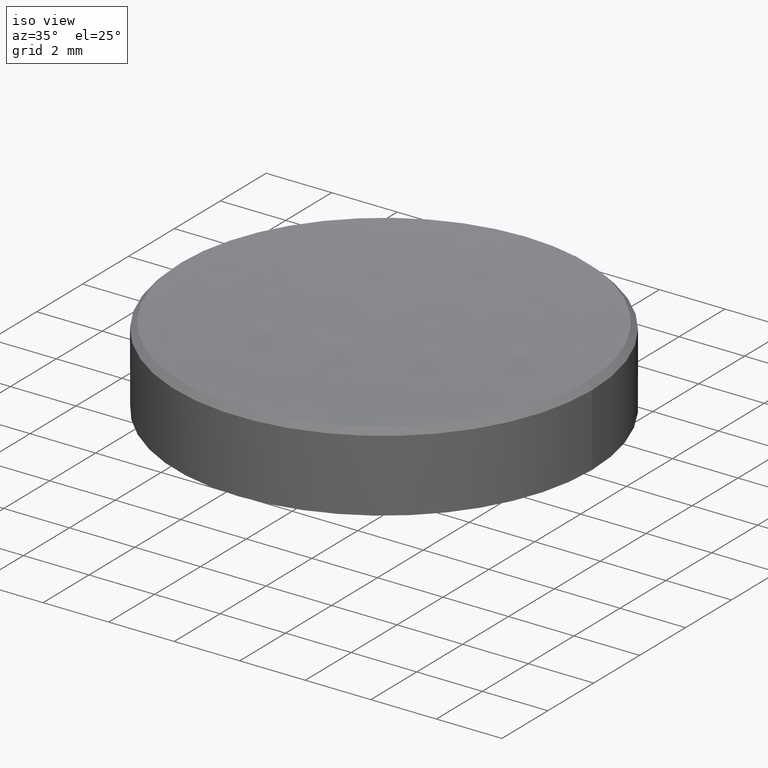
[diagram: clean part render]
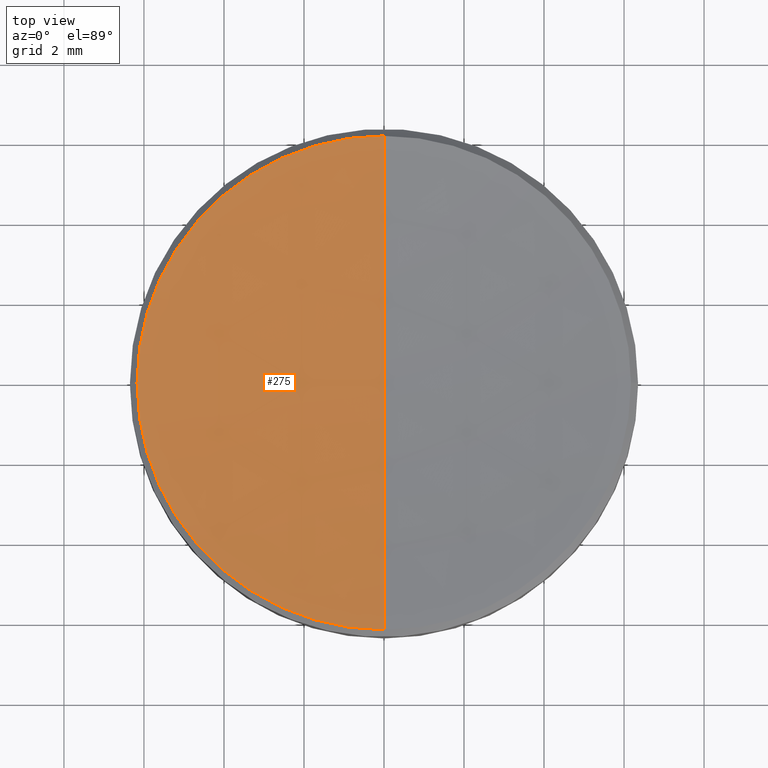
[diagram: tour spotlight — one face highlighted and labeled with its STEP entity id]
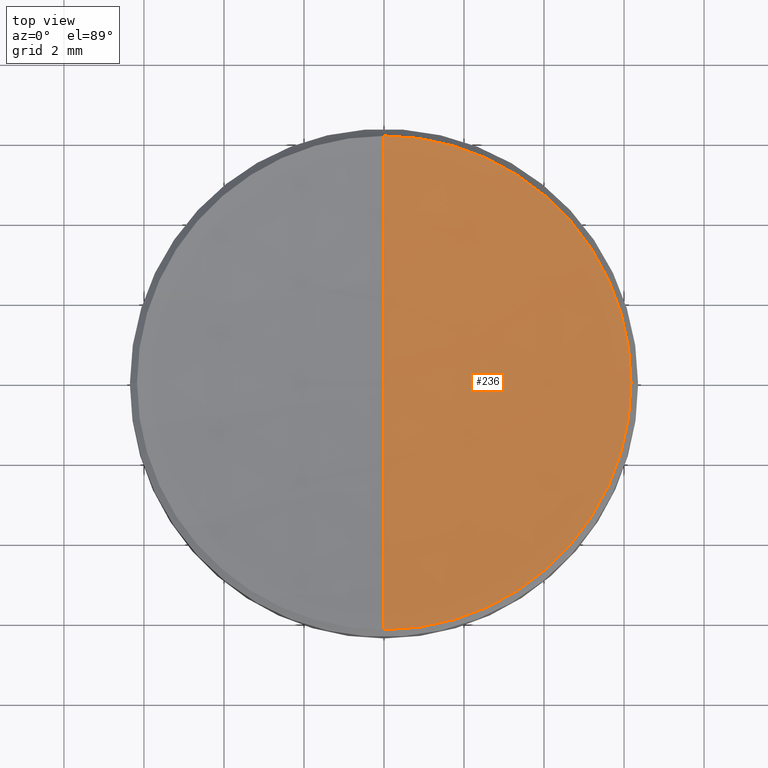
[diagram: tour spotlight — one face highlighted and labeled with its STEP entity id]
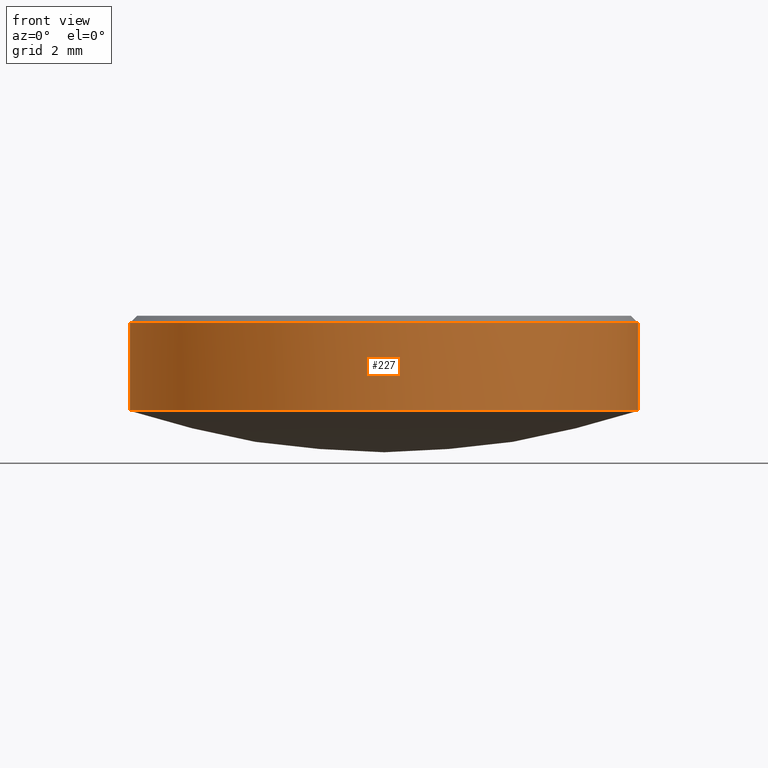
[diagram: tour spotlight — one face highlighted and labeled with its STEP entity id]
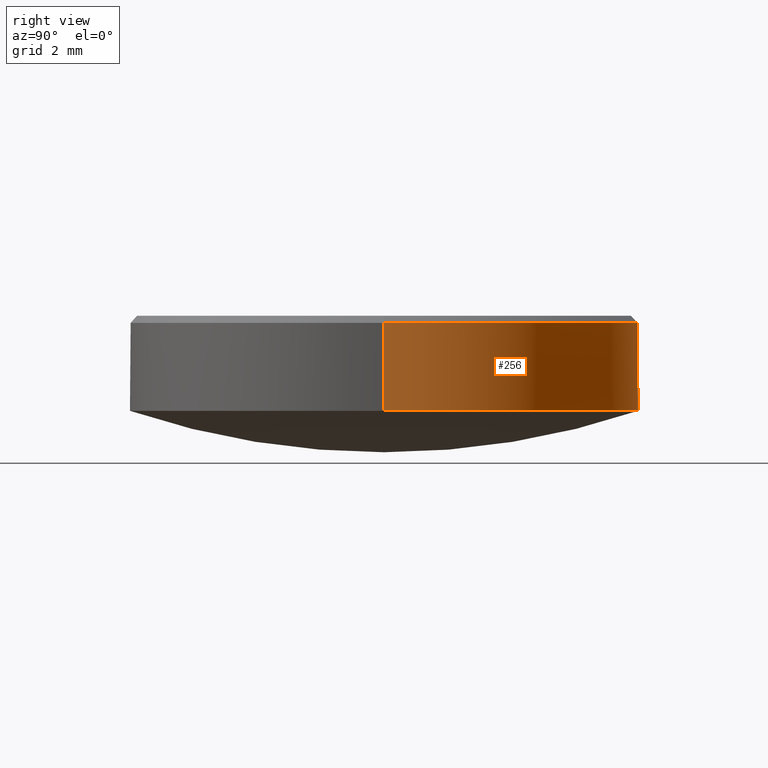
[diagram: tour spotlight — one face highlighted and labeled with its STEP entity id]
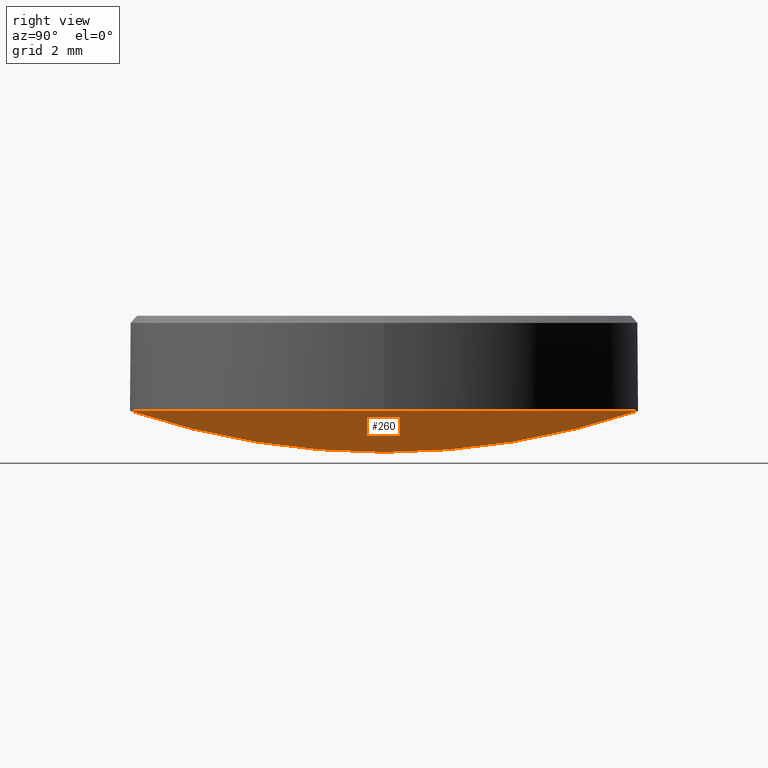
[diagram: tour spotlight — one face highlighted and labeled with its STEP entity id]
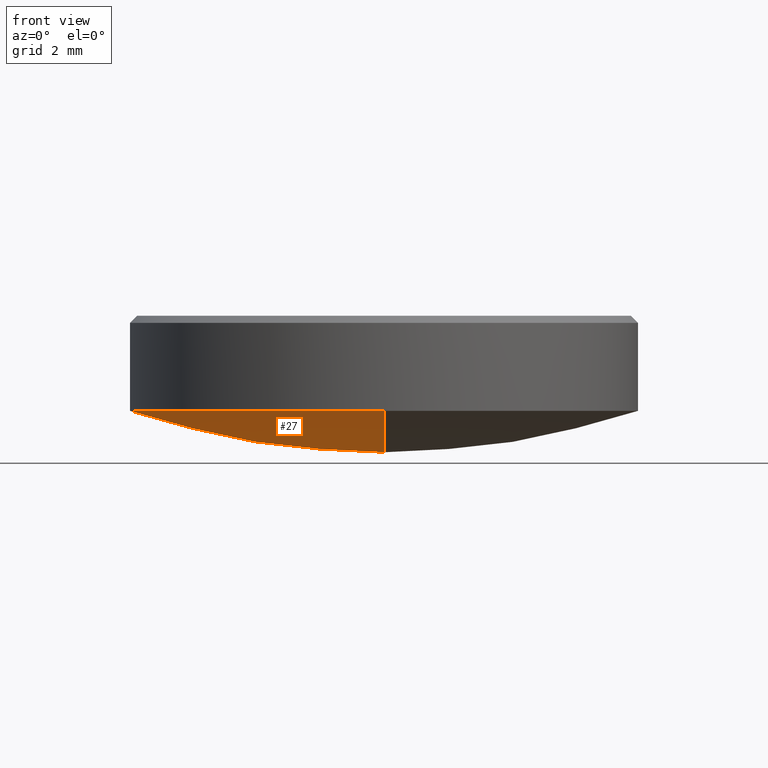
[diagram: tour spotlight — one face highlighted and labeled with its STEP entity id]
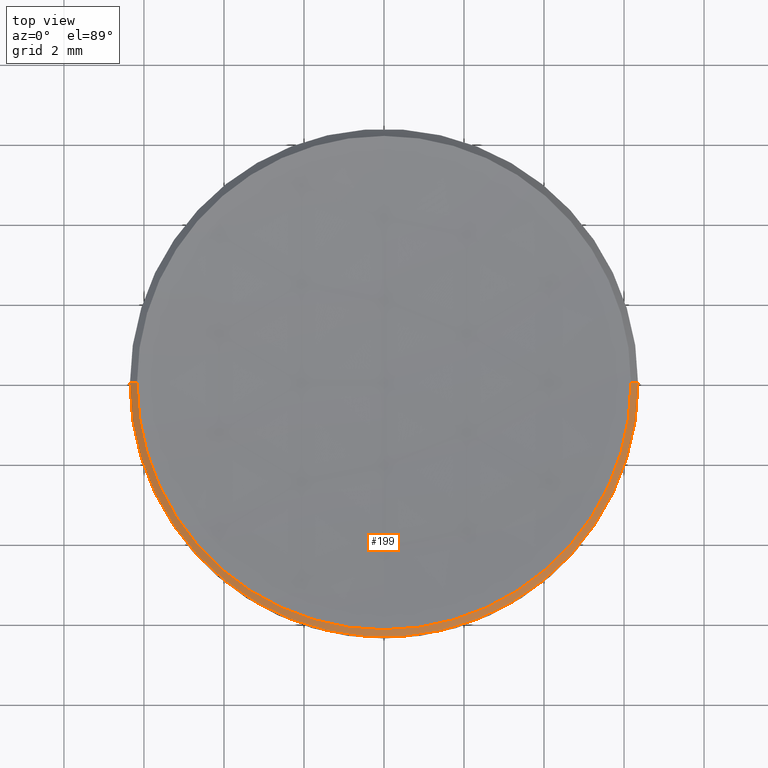
[diagram: tour spotlight — one face highlighted and labeled with its STEP entity id]
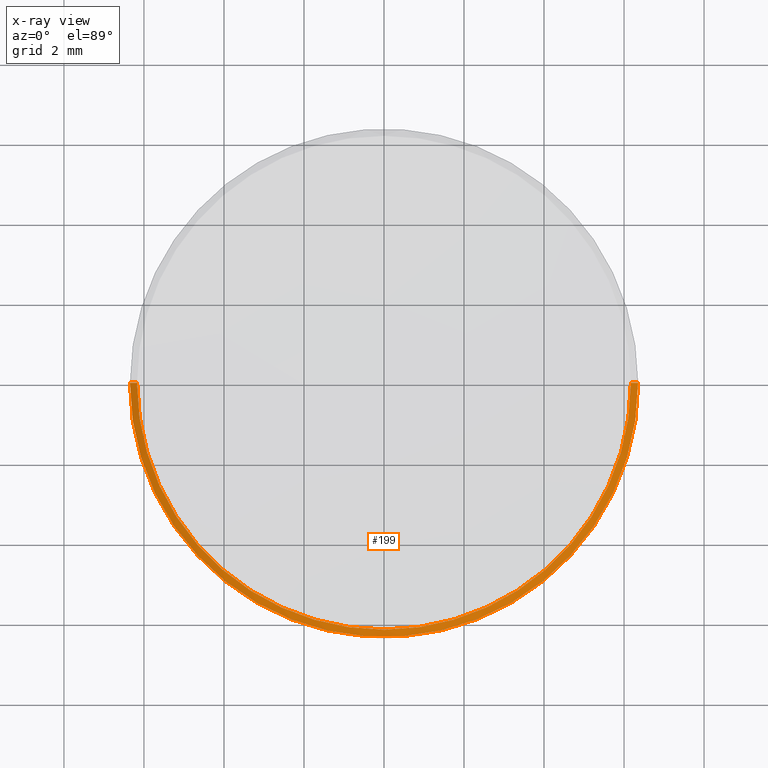
[diagram: x-ray of the same camera — body ghosted, this tour face saturated]
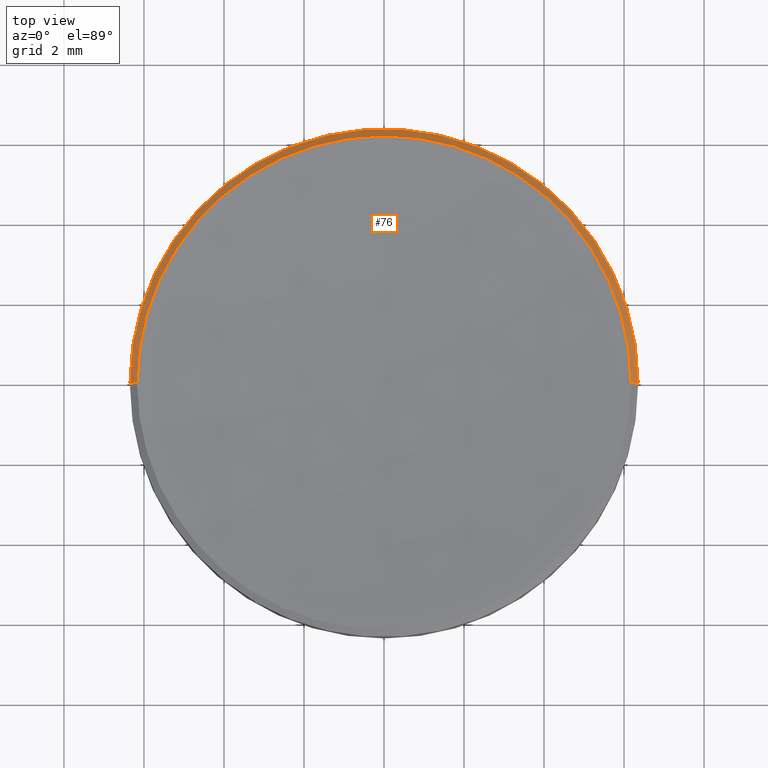
[diagram: tour spotlight — one face highlighted and labeled with its STEP entity id]
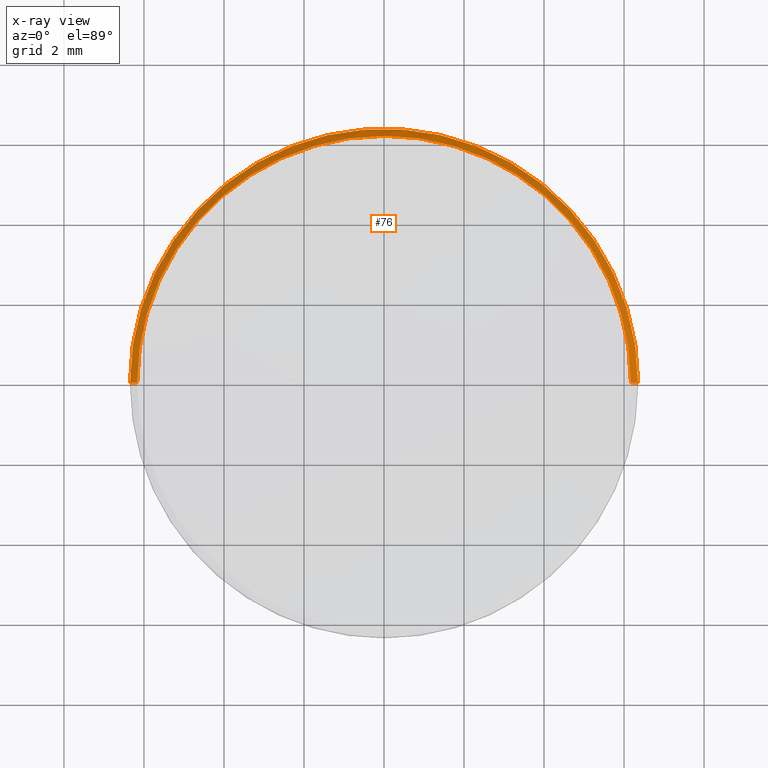
[diagram: x-ray of the same camera — body ghosted, this tour face saturated]
A machine part: a face-by-face anatomy tour. The part has 8 B-rep faces; the first image is the clean iso view, then the 8 largest visible faces are spotlighted one at a time (largest first), each with its STEP entity span.

Face 1 — top view, entity #275. In plain terms, the highlighted spherical surface has radius 49.1 mm.
Definition (entity closure, byte-faithful):
#4 = ORIENTED_EDGE ( 'NONE', *, *, #133, .T. ) ;
#6 = VERTEX_POINT ( 'NONE', #164 ) ;
#9 = ORIENTED_EDGE ( 'NONE', *, *, #61, .T. ) ;
#12 = EDGE_CURVE ( 'NONE', #257, #267, #184, .T. ) ;
#16 = FACE_OUTER_BOUND ( 'NONE', #74, .T. ) ;
#19 = CARTESIAN_POINT ( 'NONE',  ( -7.559481502147219479E-16, -6.172785089880957088, 6.377214910119027635 ) ) ;
#29 = CIRCLE ( 'NONE', #193, 6.172785089880961529 ) ;
#31 = DIRECTION ( 'NONE',  ( 1.000000000000000000, 0.000000000000000000, 0.000000000000000000 ) ) ;
#42 = AXIS2_PLACEMENT_3D ( 'NONE', #146, #31, #121 ) ;
#61 = EDGE_CURVE ( 'NONE', #6, #172, #29, .T. ) ;
#62 = SPHERICAL_SURFACE ( 'NONE', #103, 49.10000000000000142 ) ;
#74 = EDGE_LOOP ( 'NONE', ( #234, #142, #9, #4 ) ) ;
#82 = DIRECTION ( 'NONE',  ( -1.224646799147353454E-16, -1.000000000000000000, 0.000000000000000000 ) ) ;
#98 = DIRECTION ( 'NONE',  ( -0.000000000000000000, -0.000000000000000000, 1.000000000000000000 ) ) ;
#103 = AXIS2_PLACEMENT_3D ( 'NONE', #276, #195, #104 ) ;
#104 = DIRECTION ( 'NONE',  ( 0.000000000000000000, 1.000000000000000000, 0.000000000000000000 ) ) ;
#106 = DIRECTION ( 'NONE',  ( 1.000000000000000000, 0.000000000000000000, 0.000000000000000000 ) ) ;
#107 = AXIS2_PLACEMENT_3D ( 'NONE', #109, #132, #82 ) ;
#109 = CARTESIAN_POINT ( 'NONE',  ( 0.000000000000000000, 0.000000000000000000, 55.08765243878576001 ) ) ;
#114 = DIRECTION ( 'NONE',  ( 1.000000000000000000, 0.000000000000000000, 0.000000000000000000 ) ) ;
#121 = DIRECTION ( 'NONE',  ( 0.000000000000000000, 0.000000000000000000, -1.000000000000000000 ) ) ;
#132 = DIRECTION ( 'NONE',  ( -1.000000000000000000, 1.224646799147353207E-16, 0.000000000000000000 ) ) ;
#133 = EDGE_CURVE ( 'NONE', #172, #267, #179, .T. ) ;
#135 = CARTESIAN_POINT ( 'NONE',  ( 0.000000000000000000, 3.006507891906752541E-15, 5.987652438785754150 ) ) ;
#142 = ORIENTED_EDGE ( 'NONE', *, *, #233, .T. ) ;
#146 = CARTESIAN_POINT ( 'NONE',  ( 0.000000000000000000, 0.000000000000000000, 55.08765243878576001 ) ) ;
#164 = CARTESIAN_POINT ( 'NONE',  ( 0.000000000000000000, 6.172785089880957088, 6.377214910119027635 ) ) ;
#172 = VERTEX_POINT ( 'NONE', #201 ) ;
#179 = CIRCLE ( 'NONE', #248, 6.172785089880961529 ) ;
#184 = CIRCLE ( 'NONE', #107, 49.10000000000000142 ) ;
#193 = AXIS2_PLACEMENT_3D ( 'NONE', #246, #215, #106 ) ;
#195 = DIRECTION ( 'NONE',  ( -1.000000000000000000, 0.000000000000000000, 0.000000000000000000 ) ) ;
#201 = CARTESIAN_POINT ( 'NONE',  ( -6.172785089880961529, 0.000000000000000000, 6.377214910119027635 ) ) ;
#207 = CARTESIAN_POINT ( 'NONE',  ( 0.000000000000000000, 0.000000000000000000, 6.377214910119027635 ) ) ;
#215 = DIRECTION ( 'NONE',  ( -0.000000000000000000, -0.000000000000000000, 1.000000000000000000 ) ) ;
#233 = EDGE_CURVE ( 'NONE', #257, #6, #259, .T. ) ;
#234 = ORIENTED_EDGE ( 'NONE', *, *, #12, .F. ) ;
#246 = CARTESIAN_POINT ( 'NONE',  ( 0.000000000000000000, 0.000000000000000000, 6.377214910119027635 ) ) ;
#248 = AXIS2_PLACEMENT_3D ( 'NONE', #207, #98, #114 ) ;
#257 = VERTEX_POINT ( 'NONE', #135 ) ;
#259 = CIRCLE ( 'NONE', #42, 49.10000000000000142 ) ;
#267 = VERTEX_POINT ( 'NONE', #19 ) ;
#275 = ADVANCED_FACE ( 'NONE', ( #16 ), #62, .F. ) ;
#276 = CARTESIAN_POINT ( 'NONE',  ( 0.000000000000000000, 0.000000000000000000, 55.08765243878576001 ) ) ;

Face 2 — top view, entity #236. In plain terms, the highlighted spherical surface has radius 49.1 mm.
Definition (entity closure, byte-faithful):
#3 = DIRECTION ( 'NONE',  ( 1.000000000000000000, 0.000000000000000000, 0.000000000000000000 ) ) ;
#6 = VERTEX_POINT ( 'NONE', #164 ) ;
#8 = FACE_OUTER_BOUND ( 'NONE', #168, .T. ) ;
#10 = AXIS2_PLACEMENT_3D ( 'NONE', #118, #48, #163 ) ;
#12 = EDGE_CURVE ( 'NONE', #257, #267, #184, .T. ) ;
#19 = CARTESIAN_POINT ( 'NONE',  ( -7.559481502147219479E-16, -6.172785089880957088, 6.377214910119027635 ) ) ;
#31 = DIRECTION ( 'NONE',  ( 1.000000000000000000, 0.000000000000000000, 0.000000000000000000 ) ) ;
#39 = DIRECTION ( 'NONE',  ( -1.000000000000000000, 0.000000000000000000, 0.000000000000000000 ) ) ;
#42 = AXIS2_PLACEMENT_3D ( 'NONE', #146, #31, #121 ) ;
#48 = DIRECTION ( 'NONE',  ( -0.000000000000000000, -0.000000000000000000, 1.000000000000000000 ) ) ;
#53 = VERTEX_POINT ( 'NONE', #67 ) ;
#67 = CARTESIAN_POINT ( 'NONE',  ( 6.172785089880961529, 7.667994338366458779E-16, 6.377214910119027635 ) ) ;
#71 = ORIENTED_EDGE ( 'NONE', *, *, #233, .F. ) ;
#75 = SPHERICAL_SURFACE ( 'NONE', #119, 49.10000000000000142 ) ;
#78 = AXIS2_PLACEMENT_3D ( 'NONE', #91, #136, #3 ) ;
#82 = DIRECTION ( 'NONE',  ( -1.224646799147353454E-16, -1.000000000000000000, 0.000000000000000000 ) ) ;
#91 = CARTESIAN_POINT ( 'NONE',  ( 0.000000000000000000, 0.000000000000000000, 6.377214910119027635 ) ) ;
#96 = CIRCLE ( 'NONE', #78, 6.172785089880961529 ) ;
#99 = ORIENTED_EDGE ( 'NONE', *, *, #12, .T. ) ;
#107 = AXIS2_PLACEMENT_3D ( 'NONE', #109, #132, #82 ) ;
#109 = CARTESIAN_POINT ( 'NONE',  ( 0.000000000000000000, 0.000000000000000000, 55.08765243878576001 ) ) ;
#118 = CARTESIAN_POINT ( 'NONE',  ( 0.000000000000000000, 0.000000000000000000, 6.377214910119027635 ) ) ;
#119 = AXIS2_PLACEMENT_3D ( 'NONE', #173, #39, #240 ) ;
#121 = DIRECTION ( 'NONE',  ( 0.000000000000000000, 0.000000000000000000, -1.000000000000000000 ) ) ;
#129 = EDGE_CURVE ( 'NONE', #53, #6, #263, .T. ) ;
#132 = DIRECTION ( 'NONE',  ( -1.000000000000000000, 1.224646799147353207E-16, 0.000000000000000000 ) ) ;
#135 = CARTESIAN_POINT ( 'NONE',  ( 0.000000000000000000, 3.006507891906752541E-15, 5.987652438785754150 ) ) ;
#136 = DIRECTION ( 'NONE',  ( -0.000000000000000000, -0.000000000000000000, 1.000000000000000000 ) ) ;
#146 = CARTESIAN_POINT ( 'NONE',  ( 0.000000000000000000, 0.000000000000000000, 55.08765243878576001 ) ) ;
#148 = ORIENTED_EDGE ( 'NONE', *, *, #151, .T. ) ;
#151 = EDGE_CURVE ( 'NONE', #267, #53, #96, .T. ) ;
#163 = DIRECTION ( 'NONE',  ( 1.000000000000000000, 0.000000000000000000, 0.000000000000000000 ) ) ;
#164 = CARTESIAN_POINT ( 'NONE',  ( 0.000000000000000000, 6.172785089880957088, 6.377214910119027635 ) ) ;
#168 = EDGE_LOOP ( 'NONE', ( #71, #99, #148, #228 ) ) ;
#173 = CARTESIAN_POINT ( 'NONE',  ( 0.000000000000000000, 0.000000000000000000, 55.08765243878576001 ) ) ;
#184 = CIRCLE ( 'NONE', #107, 49.10000000000000142 ) ;
#228 = ORIENTED_EDGE ( 'NONE', *, *, #129, .T. ) ;
#233 = EDGE_CURVE ( 'NONE', #257, #6, #259, .T. ) ;
#236 = ADVANCED_FACE ( 'NONE', ( #8 ), #75, .F. ) ;
#240 = DIRECTION ( 'NONE',  ( 0.000000000000000000, 1.000000000000000000, 0.000000000000000000 ) ) ;
#257 = VERTEX_POINT ( 'NONE', #135 ) ;
#259 = CIRCLE ( 'NONE', #42, 49.10000000000000142 ) ;
#263 = CIRCLE ( 'NONE', #10, 6.172785089880961529 ) ;
#267 = VERTEX_POINT ( 'NONE', #19 ) ;

Face 3 — front view, entity #227. In plain terms, the highlighted cylindrical surface (partial cylindrical patch) has radius 6.35 mm, axis along (-0, -0, -1).
Definition (entity closure, byte-faithful):
#2 = DIRECTION ( 'NONE',  ( 1.000000000000000000, 0.000000000000000000, 0.000000000000000000 ) ) ;
#13 = CARTESIAN_POINT ( 'NONE',  ( -6.349999999999998757, 0.000000000000000000, 4.000000000000000000 ) ) ;
#23 = DIRECTION ( 'NONE',  ( -0.000000000000000000, -0.000000000000000000, -1.000000000000000000 ) ) ;
#25 = EDGE_CURVE ( 'NONE', #210, #26, #138, .T. ) ;
#26 = VERTEX_POINT ( 'NONE', #108 ) ;
#32 = VERTEX_POINT ( 'NONE', #185 ) ;
#33 = DIRECTION ( 'NONE',  ( -1.000000000000000000, 0.000000000000000000, 0.000000000000000000 ) ) ;
#35 = EDGE_CURVE ( 'NONE', #57, #210, #280, .T. ) ;
#37 = FACE_OUTER_BOUND ( 'NONE', #169, .T. ) ;
#38 = EDGE_CURVE ( 'NONE', #26, #32, #47, .T. ) ;
#46 = DIRECTION ( 'NONE',  ( 0.000000000000000000, 0.000000000000000000, -1.000000000000000000 ) ) ;
#47 = CIRCLE ( 'NONE', #131, 6.349999999999998757 ) ;
#55 = DIRECTION ( 'NONE',  ( -0.000000000000000000, -0.000000000000000000, -1.000000000000000000 ) ) ;
#57 = VERTEX_POINT ( 'NONE', #220 ) ;
#70 = CARTESIAN_POINT ( 'NONE',  ( 6.349999999999999645, 7.776507174585692163E-16, 10.00000000000000000 ) ) ;
#77 = VECTOR ( 'NONE', #181, 1000.000000000000000 ) ;
#85 = DIRECTION ( 'NONE',  ( -0.000000000000000000, -0.000000000000000000, 1.000000000000000000 ) ) ;
#87 = EDGE_CURVE ( 'NONE', #190, #32, #266, .T. ) ;
#101 = AXIS2_PLACEMENT_3D ( 'NONE', #221, #46, #2 ) ;
#108 = CARTESIAN_POINT ( 'NONE',  ( -7.776507174585701038E-16, -6.350000000000006750, 4.000000000000001776 ) ) ;
#115 = EDGE_CURVE ( 'NONE', #190, #57, #167, .T. ) ;
#127 = CYLINDRICAL_SURFACE ( 'NONE', #205, 6.349999999999999645 ) ;
#131 = AXIS2_PLACEMENT_3D ( 'NONE', #282, #85, #245 ) ;
#138 = CIRCLE ( 'NONE', #188, 6.349999999999998757 ) ;
#145 = ORIENTED_EDGE ( 'NONE', *, *, #35, .T. ) ;
#147 = ORIENTED_EDGE ( 'NONE', *, *, #38, .T. ) ;
#158 = DIRECTION ( 'NONE',  ( 1.000000000000000000, 0.000000000000000000, 0.000000000000000000 ) ) ;
#167 = CIRCLE ( 'NONE', #101, 6.349999999999999645 ) ;
#169 = EDGE_LOOP ( 'NONE', ( #192, #203, #145, #189, #147 ) ) ;
#181 = DIRECTION ( 'NONE',  ( -0.000000000000000000, -0.000000000000000000, -1.000000000000000000 ) ) ;
#185 = CARTESIAN_POINT ( 'NONE',  ( 6.349999999999998757, 7.776507174585691177E-16, 4.000000000000000000 ) ) ;
#186 = DIRECTION ( 'NONE',  ( -0.000000000000000000, -0.000000000000000000, 1.000000000000000000 ) ) ;
#188 = AXIS2_PLACEMENT_3D ( 'NONE', #218, #186, #158 ) ;
#189 = ORIENTED_EDGE ( 'NONE', *, *, #25, .T. ) ;
#190 = VERTEX_POINT ( 'NONE', #231 ) ;
#192 = ORIENTED_EDGE ( 'NONE', *, *, #87, .F. ) ;
#198 = CARTESIAN_POINT ( 'NONE',  ( -6.349999999999999645, 0.000000000000000000, 10.00000000000000000 ) ) ;
#203 = ORIENTED_EDGE ( 'NONE', *, *, #115, .T. ) ;
#205 = AXIS2_PLACEMENT_3D ( 'NONE', #235, #55, #33 ) ;
#210 = VERTEX_POINT ( 'NONE', #13 ) ;
#218 = CARTESIAN_POINT ( 'NONE',  ( 0.000000000000000000, 0.000000000000000000, 4.000000000000000000 ) ) ;
#220 = CARTESIAN_POINT ( 'NONE',  ( -6.349999999999999645, 0.000000000000000000, 6.200000000000003730 ) ) ;
#221 = CARTESIAN_POINT ( 'NONE',  ( 0.000000000000000000, 0.000000000000000000, 6.200000000000003730 ) ) ;
#227 = ADVANCED_FACE ( 'NONE', ( #37 ), #127, .T. ) ;
#231 = CARTESIAN_POINT ( 'NONE',  ( 6.349999999999999645, 7.776507174585692163E-16, 6.200000000000003730 ) ) ;
#235 = CARTESIAN_POINT ( 'NONE',  ( 0.000000000000000000, 0.000000000000000000, 10.00000000000000000 ) ) ;
#245 = DIRECTION ( 'NONE',  ( 1.000000000000000000, 0.000000000000000000, 0.000000000000000000 ) ) ;
#265 = VECTOR ( 'NONE', #23, 1000.000000000000000 ) ;
#266 = LINE ( 'NONE', #70, #265 ) ;
#280 = LINE ( 'NONE', #198, #77 ) ;
#282 = CARTESIAN_POINT ( 'NONE',  ( 0.000000000000000000, 0.000000000000000000, 4.000000000000000000 ) ) ;

Face 4 — right view, entity #256. In plain terms, the highlighted cylindrical surface (partial cylindrical patch) has radius 6.35 mm, axis along (-0, -0, -1).
Definition (entity closure, byte-faithful):
#13 = CARTESIAN_POINT ( 'NONE',  ( -6.349999999999998757, 0.000000000000000000, 4.000000000000000000 ) ) ;
#17 = DIRECTION ( 'NONE',  ( 0.000000000000000000, 0.000000000000000000, -1.000000000000000000 ) ) ;
#21 = EDGE_CURVE ( 'NONE', #57, #190, #204, .T. ) ;
#23 = DIRECTION ( 'NONE',  ( -0.000000000000000000, -0.000000000000000000, -1.000000000000000000 ) ) ;
#32 = VERTEX_POINT ( 'NONE', #185 ) ;
#35 = EDGE_CURVE ( 'NONE', #57, #210, #280, .T. ) ;
#40 = FACE_OUTER_BOUND ( 'NONE', #253, .T. ) ;
#41 = DIRECTION ( 'NONE',  ( -0.000000000000000000, -0.000000000000000000, -1.000000000000000000 ) ) ;
#56 = ORIENTED_EDGE ( 'NONE', *, *, #87, .T. ) ;
#57 = VERTEX_POINT ( 'NONE', #220 ) ;
#63 = CARTESIAN_POINT ( 'NONE',  ( 0.000000000000000000, 0.000000000000000000, 6.200000000000003730 ) ) ;
#70 = CARTESIAN_POINT ( 'NONE',  ( 6.349999999999999645, 7.776507174585692163E-16, 10.00000000000000000 ) ) ;
#72 = CARTESIAN_POINT ( 'NONE',  ( 0.000000000000000000, 0.000000000000000000, 4.000000000000000000 ) ) ;
#77 = VECTOR ( 'NONE', #181, 1000.000000000000000 ) ;
#80 = CYLINDRICAL_SURFACE ( 'NONE', #229, 6.349999999999999645 ) ;
#87 = EDGE_CURVE ( 'NONE', #190, #32, #266, .T. ) ;
#89 = CIRCLE ( 'NONE', #255, 6.349999999999998757 ) ;
#94 = ORIENTED_EDGE ( 'NONE', *, *, #21, .T. ) ;
#100 = EDGE_CURVE ( 'NONE', #32, #250, #89, .T. ) ;
#113 = DIRECTION ( 'NONE',  ( 1.000000000000000000, 0.000000000000000000, 0.000000000000000000 ) ) ;
#116 = ORIENTED_EDGE ( 'NONE', *, *, #35, .F. ) ;
#122 = ORIENTED_EDGE ( 'NONE', *, *, #182, .T. ) ;
#123 = AXIS2_PLACEMENT_3D ( 'NONE', #63, #17, #113 ) ;
#124 = ORIENTED_EDGE ( 'NONE', *, *, #100, .T. ) ;
#125 = DIRECTION ( 'NONE',  ( 1.000000000000000000, 0.000000000000000000, 0.000000000000000000 ) ) ;
#143 = DIRECTION ( 'NONE',  ( 1.000000000000000000, 0.000000000000000000, 0.000000000000000000 ) ) ;
#160 = DIRECTION ( 'NONE',  ( -1.000000000000000000, 0.000000000000000000, 0.000000000000000000 ) ) ;
#161 = CARTESIAN_POINT ( 'NONE',  ( 0.000000000000000000, 0.000000000000000000, 10.00000000000000000 ) ) ;
#166 = CARTESIAN_POINT ( 'NONE',  ( 0.000000000000000000, 0.000000000000000000, 4.000000000000000000 ) ) ;
#177 = AXIS2_PLACEMENT_3D ( 'NONE', #72, #211, #125 ) ;
#181 = DIRECTION ( 'NONE',  ( -0.000000000000000000, -0.000000000000000000, -1.000000000000000000 ) ) ;
#182 = EDGE_CURVE ( 'NONE', #250, #210, #244, .T. ) ;
#185 = CARTESIAN_POINT ( 'NONE',  ( 6.349999999999998757, 7.776507174585691177E-16, 4.000000000000000000 ) ) ;
#190 = VERTEX_POINT ( 'NONE', #231 ) ;
#191 = CARTESIAN_POINT ( 'NONE',  ( 0.000000000000000000, 6.350000000000006750, 4.000000000000001776 ) ) ;
#198 = CARTESIAN_POINT ( 'NONE',  ( -6.349999999999999645, 0.000000000000000000, 10.00000000000000000 ) ) ;
#204 = CIRCLE ( 'NONE', #123, 6.349999999999999645 ) ;
#210 = VERTEX_POINT ( 'NONE', #13 ) ;
#211 = DIRECTION ( 'NONE',  ( -0.000000000000000000, -0.000000000000000000, 1.000000000000000000 ) ) ;
#220 = CARTESIAN_POINT ( 'NONE',  ( -6.349999999999999645, 0.000000000000000000, 6.200000000000003730 ) ) ;
#229 = AXIS2_PLACEMENT_3D ( 'NONE', #161, #41, #160 ) ;
#231 = CARTESIAN_POINT ( 'NONE',  ( 6.349999999999999645, 7.776507174585692163E-16, 6.200000000000003730 ) ) ;
#244 = CIRCLE ( 'NONE', #177, 6.349999999999998757 ) ;
#249 = DIRECTION ( 'NONE',  ( -0.000000000000000000, -0.000000000000000000, 1.000000000000000000 ) ) ;
#250 = VERTEX_POINT ( 'NONE', #191 ) ;
#253 = EDGE_LOOP ( 'NONE', ( #94, #56, #124, #122, #116 ) ) ;
#255 = AXIS2_PLACEMENT_3D ( 'NONE', #166, #249, #143 ) ;
#256 = ADVANCED_FACE ( 'NONE', ( #40 ), #80, .T. ) ;
#265 = VECTOR ( 'NONE', #23, 1000.000000000000000 ) ;
#266 = LINE ( 'NONE', #70, #265 ) ;
#280 = LINE ( 'NONE', #198, #77 ) ;

Face 5 — right view, entity #260. In plain terms, the highlighted spherical surface has radius 20 mm.
Definition (entity closure, byte-faithful):
#1 = CARTESIAN_POINT ( 'NONE',  ( 0.000000000000000000, 0.000000000000000000, 22.96516543560851886 ) ) ;
#7 = VERTEX_POINT ( 'NONE', #159 ) ;
#11 = ORIENTED_EDGE ( 'NONE', *, *, #139, .T. ) ;
#26 = VERTEX_POINT ( 'NONE', #108 ) ;
#30 = ORIENTED_EDGE ( 'NONE', *, *, #100, .F. ) ;
#32 = VERTEX_POINT ( 'NONE', #185 ) ;
#38 = EDGE_CURVE ( 'NONE', #26, #32, #47, .T. ) ;
#47 = CIRCLE ( 'NONE', #131, 6.349999999999998757 ) ;
#49 = ORIENTED_EDGE ( 'NONE', *, *, #38, .F. ) ;
#58 = CARTESIAN_POINT ( 'NONE',  ( 0.000000000000000000, 0.000000000000000000, 22.96516543560851886 ) ) ;
#64 = AXIS2_PLACEMENT_3D ( 'NONE', #58, #130, #243 ) ;
#81 = CIRCLE ( 'NONE', #194, 20.00000000000000355 ) ;
#85 = DIRECTION ( 'NONE',  ( -0.000000000000000000, -0.000000000000000000, 1.000000000000000000 ) ) ;
#89 = CIRCLE ( 'NONE', #255, 6.349999999999998757 ) ;
#100 = EDGE_CURVE ( 'NONE', #32, #250, #89, .T. ) ;
#105 = SPHERICAL_SURFACE ( 'NONE', #64, 20.00000000000000355 ) ;
#108 = CARTESIAN_POINT ( 'NONE',  ( -7.776507174585701038E-16, -6.350000000000006750, 4.000000000000001776 ) ) ;
#112 = DIRECTION ( 'NONE',  ( 0.000000000000000000, 0.000000000000000000, -1.000000000000000000 ) ) ;
#117 = EDGE_LOOP ( 'NONE', ( #171, #11, #30, #49 ) ) ;
#130 = DIRECTION ( 'NONE',  ( -1.000000000000000000, 0.000000000000000000, 0.000000000000000000 ) ) ;
#131 = AXIS2_PLACEMENT_3D ( 'NONE', #282, #85, #245 ) ;
#139 = EDGE_CURVE ( 'NONE', #7, #250, #81, .T. ) ;
#143 = DIRECTION ( 'NONE',  ( 1.000000000000000000, 0.000000000000000000, 0.000000000000000000 ) ) ;
#159 = CARTESIAN_POINT ( 'NONE',  ( 0.000000000000000000, 1.224646799147353454E-15, 2.965165435608513533 ) ) ;
#162 = AXIS2_PLACEMENT_3D ( 'NONE', #281, #178, #239 ) ;
#166 = CARTESIAN_POINT ( 'NONE',  ( 0.000000000000000000, 0.000000000000000000, 4.000000000000000000 ) ) ;
#171 = ORIENTED_EDGE ( 'NONE', *, *, #251, .F. ) ;
#178 = DIRECTION ( 'NONE',  ( -1.000000000000000000, 1.224646799147353207E-16, 0.000000000000000000 ) ) ;
#185 = CARTESIAN_POINT ( 'NONE',  ( 6.349999999999998757, 7.776507174585691177E-16, 4.000000000000000000 ) ) ;
#191 = CARTESIAN_POINT ( 'NONE',  ( 0.000000000000000000, 6.350000000000006750, 4.000000000000001776 ) ) ;
#194 = AXIS2_PLACEMENT_3D ( 'NONE', #1, #223, #112 ) ;
#223 = DIRECTION ( 'NONE',  ( 1.000000000000000000, -0.000000000000000000, 0.000000000000000000 ) ) ;
#239 = DIRECTION ( 'NONE',  ( -1.224646799147353207E-16, -1.000000000000000000, 0.000000000000000000 ) ) ;
#243 = DIRECTION ( 'NONE',  ( 0.000000000000000000, 1.000000000000000000, 0.000000000000000000 ) ) ;
#245 = DIRECTION ( 'NONE',  ( 1.000000000000000000, 0.000000000000000000, 0.000000000000000000 ) ) ;
#249 = DIRECTION ( 'NONE',  ( -0.000000000000000000, -0.000000000000000000, 1.000000000000000000 ) ) ;
#250 = VERTEX_POINT ( 'NONE', #191 ) ;
#251 = EDGE_CURVE ( 'NONE', #7, #26, #272, .T. ) ;
#255 = AXIS2_PLACEMENT_3D ( 'NONE', #166, #249, #143 ) ;
#260 = ADVANCED_FACE ( 'NONE', ( #271 ), #105, .T. ) ;
#271 = FACE_OUTER_BOUND ( 'NONE', #117, .T. ) ;
#272 = CIRCLE ( 'NONE', #162, 20.00000000000000355 ) ;
#281 = CARTESIAN_POINT ( 'NONE',  ( 0.000000000000000000, 0.000000000000000000, 22.96516543560851886 ) ) ;
#282 = CARTESIAN_POINT ( 'NONE',  ( 0.000000000000000000, 0.000000000000000000, 4.000000000000000000 ) ) ;

Face 6 — front view, entity #27. In plain terms, the highlighted spherical surface has radius 20 mm.
Definition (entity closure, byte-faithful):
#1 = CARTESIAN_POINT ( 'NONE',  ( 0.000000000000000000, 0.000000000000000000, 22.96516543560851886 ) ) ;
#7 = VERTEX_POINT ( 'NONE', #159 ) ;
#13 = CARTESIAN_POINT ( 'NONE',  ( -6.349999999999998757, 0.000000000000000000, 4.000000000000000000 ) ) ;
#20 = CARTESIAN_POINT ( 'NONE',  ( 0.000000000000000000, 0.000000000000000000, 22.96516543560851886 ) ) ;
#25 = EDGE_CURVE ( 'NONE', #210, #26, #138, .T. ) ;
#26 = VERTEX_POINT ( 'NONE', #108 ) ;
#27 = ADVANCED_FACE ( 'NONE', ( #88 ), #59, .T. ) ;
#59 = SPHERICAL_SURFACE ( 'NONE', #222, 20.00000000000000355 ) ;
#72 = CARTESIAN_POINT ( 'NONE',  ( 0.000000000000000000, 0.000000000000000000, 4.000000000000000000 ) ) ;
#73 = ORIENTED_EDGE ( 'NONE', *, *, #139, .F. ) ;
#81 = CIRCLE ( 'NONE', #194, 20.00000000000000355 ) ;
#88 = FACE_OUTER_BOUND ( 'NONE', #209, .T. ) ;
#108 = CARTESIAN_POINT ( 'NONE',  ( -7.776507174585701038E-16, -6.350000000000006750, 4.000000000000001776 ) ) ;
#111 = DIRECTION ( 'NONE',  ( 0.000000000000000000, 1.000000000000000000, 0.000000000000000000 ) ) ;
#112 = DIRECTION ( 'NONE',  ( 0.000000000000000000, 0.000000000000000000, -1.000000000000000000 ) ) ;
#120 = ORIENTED_EDGE ( 'NONE', *, *, #251, .T. ) ;
#125 = DIRECTION ( 'NONE',  ( 1.000000000000000000, 0.000000000000000000, 0.000000000000000000 ) ) ;
#138 = CIRCLE ( 'NONE', #188, 6.349999999999998757 ) ;
#139 = EDGE_CURVE ( 'NONE', #7, #250, #81, .T. ) ;
#158 = DIRECTION ( 'NONE',  ( 1.000000000000000000, 0.000000000000000000, 0.000000000000000000 ) ) ;
#159 = CARTESIAN_POINT ( 'NONE',  ( 0.000000000000000000, 1.224646799147353454E-15, 2.965165435608513533 ) ) ;
#162 = AXIS2_PLACEMENT_3D ( 'NONE', #281, #178, #239 ) ;
#175 = ORIENTED_EDGE ( 'NONE', *, *, #182, .F. ) ;
#177 = AXIS2_PLACEMENT_3D ( 'NONE', #72, #211, #125 ) ;
#178 = DIRECTION ( 'NONE',  ( -1.000000000000000000, 1.224646799147353207E-16, 0.000000000000000000 ) ) ;
#182 = EDGE_CURVE ( 'NONE', #250, #210, #244, .T. ) ;
#186 = DIRECTION ( 'NONE',  ( -0.000000000000000000, -0.000000000000000000, 1.000000000000000000 ) ) ;
#188 = AXIS2_PLACEMENT_3D ( 'NONE', #218, #186, #158 ) ;
#191 = CARTESIAN_POINT ( 'NONE',  ( 0.000000000000000000, 6.350000000000006750, 4.000000000000001776 ) ) ;
#194 = AXIS2_PLACEMENT_3D ( 'NONE', #1, #223, #112 ) ;
#209 = EDGE_LOOP ( 'NONE', ( #73, #120, #230, #175 ) ) ;
#210 = VERTEX_POINT ( 'NONE', #13 ) ;
#211 = DIRECTION ( 'NONE',  ( -0.000000000000000000, -0.000000000000000000, 1.000000000000000000 ) ) ;
#218 = CARTESIAN_POINT ( 'NONE',  ( 0.000000000000000000, 0.000000000000000000, 4.000000000000000000 ) ) ;
#219 = DIRECTION ( 'NONE',  ( -1.000000000000000000, 0.000000000000000000, 0.000000000000000000 ) ) ;
#222 = AXIS2_PLACEMENT_3D ( 'NONE', #20, #219, #111 ) ;
#223 = DIRECTION ( 'NONE',  ( 1.000000000000000000, -0.000000000000000000, 0.000000000000000000 ) ) ;
#230 = ORIENTED_EDGE ( 'NONE', *, *, #25, .F. ) ;
#239 = DIRECTION ( 'NONE',  ( -1.224646799147353207E-16, -1.000000000000000000, 0.000000000000000000 ) ) ;
#244 = CIRCLE ( 'NONE', #177, 6.349999999999998757 ) ;
#250 = VERTEX_POINT ( 'NONE', #191 ) ;
#251 = EDGE_CURVE ( 'NONE', #7, #26, #272, .T. ) ;
#272 = CIRCLE ( 'NONE', #162, 20.00000000000000355 ) ;
#281 = CARTESIAN_POINT ( 'NONE',  ( 0.000000000000000000, 0.000000000000000000, 22.96516543560851886 ) ) ;

Face 7 — top view, entity #199. An x-ray twin of the same camera follows (body ghosted, this face saturated) — the face is partly hidden behind the body. In plain terms, the highlighted conical surface has half-angle 45 deg.
Definition (entity closure, byte-faithful):
#2 = DIRECTION ( 'NONE',  ( 1.000000000000000000, 0.000000000000000000, 0.000000000000000000 ) ) ;
#3 = DIRECTION ( 'NONE',  ( 1.000000000000000000, 0.000000000000000000, 0.000000000000000000 ) ) ;
#5 = AXIS2_PLACEMENT_3D ( 'NONE', #212, #102, #152 ) ;
#19 = CARTESIAN_POINT ( 'NONE',  ( -7.559481502147219479E-16, -6.172785089880957088, 6.377214910119027635 ) ) ;
#24 = LINE ( 'NONE', #200, #150 ) ;
#43 = LINE ( 'NONE', #202, #270 ) ;
#45 = EDGE_CURVE ( 'NONE', #53, #190, #43, .T. ) ;
#46 = DIRECTION ( 'NONE',  ( 0.000000000000000000, 0.000000000000000000, -1.000000000000000000 ) ) ;
#51 = ORIENTED_EDGE ( 'NONE', *, *, #45, .F. ) ;
#53 = VERTEX_POINT ( 'NONE', #67 ) ;
#57 = VERTEX_POINT ( 'NONE', #220 ) ;
#67 = CARTESIAN_POINT ( 'NONE',  ( 6.172785089880961529, 7.667994338366458779E-16, 6.377214910119027635 ) ) ;
#78 = AXIS2_PLACEMENT_3D ( 'NONE', #91, #136, #3 ) ;
#91 = CARTESIAN_POINT ( 'NONE',  ( 0.000000000000000000, 0.000000000000000000, 6.377214910119027635 ) ) ;
#92 = DIRECTION ( 'NONE',  ( -0.7071067811865648922, 0.000000000000000000, -0.7071067811865301422 ) ) ;
#96 = CIRCLE ( 'NONE', #78, 6.172785089880961529 ) ;
#98 = DIRECTION ( 'NONE',  ( -0.000000000000000000, -0.000000000000000000, 1.000000000000000000 ) ) ;
#101 = AXIS2_PLACEMENT_3D ( 'NONE', #221, #46, #2 ) ;
#102 = DIRECTION ( 'NONE',  ( 0.000000000000000000, 0.000000000000000000, -1.000000000000000000 ) ) ;
#114 = DIRECTION ( 'NONE',  ( 1.000000000000000000, 0.000000000000000000, 0.000000000000000000 ) ) ;
#115 = EDGE_CURVE ( 'NONE', #190, #57, #167, .T. ) ;
#133 = EDGE_CURVE ( 'NONE', #172, #267, #179, .T. ) ;
#134 = CONICAL_SURFACE ( 'NONE', #5, 6.172785089880967746, 0.7853981633974728149 ) ;
#136 = DIRECTION ( 'NONE',  ( -0.000000000000000000, -0.000000000000000000, 1.000000000000000000 ) ) ;
#141 = EDGE_LOOP ( 'NONE', ( #51, #225, #254, #187, #206 ) ) ;
#150 = VECTOR ( 'NONE', #92, 1000.000000000000114 ) ;
#151 = EDGE_CURVE ( 'NONE', #267, #53, #96, .T. ) ;
#152 = DIRECTION ( 'NONE',  ( -1.000000000000000000, 0.000000000000000000, 0.000000000000000000 ) ) ;
#167 = CIRCLE ( 'NONE', #101, 6.349999999999999645 ) ;
#170 = EDGE_CURVE ( 'NONE', #172, #57, #24, .T. ) ;
#172 = VERTEX_POINT ( 'NONE', #201 ) ;
#176 = FACE_OUTER_BOUND ( 'NONE', #141, .T. ) ;
#179 = CIRCLE ( 'NONE', #248, 6.172785089880961529 ) ;
#187 = ORIENTED_EDGE ( 'NONE', *, *, #170, .T. ) ;
#190 = VERTEX_POINT ( 'NONE', #231 ) ;
#199 = ADVANCED_FACE ( 'NONE', ( #176 ), #134, .T. ) ;
#200 = CARTESIAN_POINT ( 'NONE',  ( -6.172785089880967746, 0.000000000000000000, 6.377214910119027635 ) ) ;
#201 = CARTESIAN_POINT ( 'NONE',  ( -6.172785089880961529, 0.000000000000000000, 6.377214910119027635 ) ) ;
#202 = CARTESIAN_POINT ( 'NONE',  ( 6.172785089880967746, 7.559481502147233284E-16, 6.377214910119027635 ) ) ;
#206 = ORIENTED_EDGE ( 'NONE', *, *, #115, .F. ) ;
#207 = CARTESIAN_POINT ( 'NONE',  ( 0.000000000000000000, 0.000000000000000000, 6.377214910119027635 ) ) ;
#212 = CARTESIAN_POINT ( 'NONE',  ( 0.000000000000000000, 0.000000000000000000, 6.377214910119027635 ) ) ;
#220 = CARTESIAN_POINT ( 'NONE',  ( -6.349999999999999645, 0.000000000000000000, 6.200000000000003730 ) ) ;
#221 = CARTESIAN_POINT ( 'NONE',  ( 0.000000000000000000, 0.000000000000000000, 6.200000000000003730 ) ) ;
#224 = DIRECTION ( 'NONE',  ( 0.7071067811865648922, 8.659560562355146097E-17, -0.7071067811865301422 ) ) ;
#225 = ORIENTED_EDGE ( 'NONE', *, *, #151, .F. ) ;
#231 = CARTESIAN_POINT ( 'NONE',  ( 6.349999999999999645, 7.776507174585692163E-16, 6.200000000000003730 ) ) ;
#248 = AXIS2_PLACEMENT_3D ( 'NONE', #207, #98, #114 ) ;
#254 = ORIENTED_EDGE ( 'NONE', *, *, #133, .F. ) ;
#267 = VERTEX_POINT ( 'NONE', #19 ) ;
#270 = VECTOR ( 'NONE', #224, 1000.000000000000114 ) ;

Face 8 — top view, entity #76. An x-ray twin of the same camera follows (body ghosted, this face saturated) — the face is partly hidden behind the body. In plain terms, the highlighted conical surface has half-angle 45 deg.
Definition (entity closure, byte-faithful):
#6 = VERTEX_POINT ( 'NONE', #164 ) ;
#10 = AXIS2_PLACEMENT_3D ( 'NONE', #118, #48, #163 ) ;
#17 = DIRECTION ( 'NONE',  ( 0.000000000000000000, 0.000000000000000000, -1.000000000000000000 ) ) ;
#21 = EDGE_CURVE ( 'NONE', #57, #190, #204, .T. ) ;
#24 = LINE ( 'NONE', #200, #150 ) ;
#28 = ORIENTED_EDGE ( 'NONE', *, *, #21, .F. ) ;
#29 = CIRCLE ( 'NONE', #193, 6.172785089880961529 ) ;
#43 = LINE ( 'NONE', #202, #270 ) ;
#45 = EDGE_CURVE ( 'NONE', #53, #190, #43, .T. ) ;
#48 = DIRECTION ( 'NONE',  ( -0.000000000000000000, -0.000000000000000000, 1.000000000000000000 ) ) ;
#52 = DIRECTION ( 'NONE',  ( -1.000000000000000000, 0.000000000000000000, 0.000000000000000000 ) ) ;
#53 = VERTEX_POINT ( 'NONE', #67 ) ;
#54 = AXIS2_PLACEMENT_3D ( 'NONE', #86, #95, #52 ) ;
#57 = VERTEX_POINT ( 'NONE', #220 ) ;
#61 = EDGE_CURVE ( 'NONE', #6, #172, #29, .T. ) ;
#63 = CARTESIAN_POINT ( 'NONE',  ( 0.000000000000000000, 0.000000000000000000, 6.200000000000003730 ) ) ;
#67 = CARTESIAN_POINT ( 'NONE',  ( 6.172785089880961529, 7.667994338366458779E-16, 6.377214910119027635 ) ) ;
#76 = ADVANCED_FACE ( 'NONE', ( #226 ), #144, .T. ) ;
#86 = CARTESIAN_POINT ( 'NONE',  ( 0.000000000000000000, 0.000000000000000000, 6.377214910119027635 ) ) ;
#92 = DIRECTION ( 'NONE',  ( -0.7071067811865648922, 0.000000000000000000, -0.7071067811865301422 ) ) ;
#95 = DIRECTION ( 'NONE',  ( 0.000000000000000000, 0.000000000000000000, -1.000000000000000000 ) ) ;
#97 = EDGE_LOOP ( 'NONE', ( #268, #208, #28, #232, #258 ) ) ;
#106 = DIRECTION ( 'NONE',  ( 1.000000000000000000, 0.000000000000000000, 0.000000000000000000 ) ) ;
#113 = DIRECTION ( 'NONE',  ( 1.000000000000000000, 0.000000000000000000, 0.000000000000000000 ) ) ;
#118 = CARTESIAN_POINT ( 'NONE',  ( 0.000000000000000000, 0.000000000000000000, 6.377214910119027635 ) ) ;
#123 = AXIS2_PLACEMENT_3D ( 'NONE', #63, #17, #113 ) ;
#129 = EDGE_CURVE ( 'NONE', #53, #6, #263, .T. ) ;
#144 = CONICAL_SURFACE ( 'NONE', #54, 6.172785089880967746, 0.7853981633974728149 ) ;
#150 = VECTOR ( 'NONE', #92, 1000.000000000000114 ) ;
#163 = DIRECTION ( 'NONE',  ( 1.000000000000000000, 0.000000000000000000, 0.000000000000000000 ) ) ;
#164 = CARTESIAN_POINT ( 'NONE',  ( 0.000000000000000000, 6.172785089880957088, 6.377214910119027635 ) ) ;
#170 = EDGE_CURVE ( 'NONE', #172, #57, #24, .T. ) ;
#172 = VERTEX_POINT ( 'NONE', #201 ) ;
#190 = VERTEX_POINT ( 'NONE', #231 ) ;
#193 = AXIS2_PLACEMENT_3D ( 'NONE', #246, #215, #106 ) ;
#200 = CARTESIAN_POINT ( 'NONE',  ( -6.172785089880967746, 0.000000000000000000, 6.377214910119027635 ) ) ;
#201 = CARTESIAN_POINT ( 'NONE',  ( -6.172785089880961529, 0.000000000000000000, 6.377214910119027635 ) ) ;
#202 = CARTESIAN_POINT ( 'NONE',  ( 6.172785089880967746, 7.559481502147233284E-16, 6.377214910119027635 ) ) ;
#204 = CIRCLE ( 'NONE', #123, 6.349999999999999645 ) ;
#208 = ORIENTED_EDGE ( 'NONE', *, *, #45, .T. ) ;
#215 = DIRECTION ( 'NONE',  ( -0.000000000000000000, -0.000000000000000000, 1.000000000000000000 ) ) ;
#220 = CARTESIAN_POINT ( 'NONE',  ( -6.349999999999999645, 0.000000000000000000, 6.200000000000003730 ) ) ;
#224 = DIRECTION ( 'NONE',  ( 0.7071067811865648922, 8.659560562355146097E-17, -0.7071067811865301422 ) ) ;
#226 = FACE_OUTER_BOUND ( 'NONE', #97, .T. ) ;
#231 = CARTESIAN_POINT ( 'NONE',  ( 6.349999999999999645, 7.776507174585692163E-16, 6.200000000000003730 ) ) ;
#232 = ORIENTED_EDGE ( 'NONE', *, *, #170, .F. ) ;
#246 = CARTESIAN_POINT ( 'NONE',  ( 0.000000000000000000, 0.000000000000000000, 6.377214910119027635 ) ) ;
#258 = ORIENTED_EDGE ( 'NONE', *, *, #61, .F. ) ;
#263 = CIRCLE ( 'NONE', #10, 6.172785089880961529 ) ;
#268 = ORIENTED_EDGE ( 'NONE', *, *, #129, .F. ) ;
#270 = VECTOR ( 'NONE', #224, 1000.000000000000114 ) ;